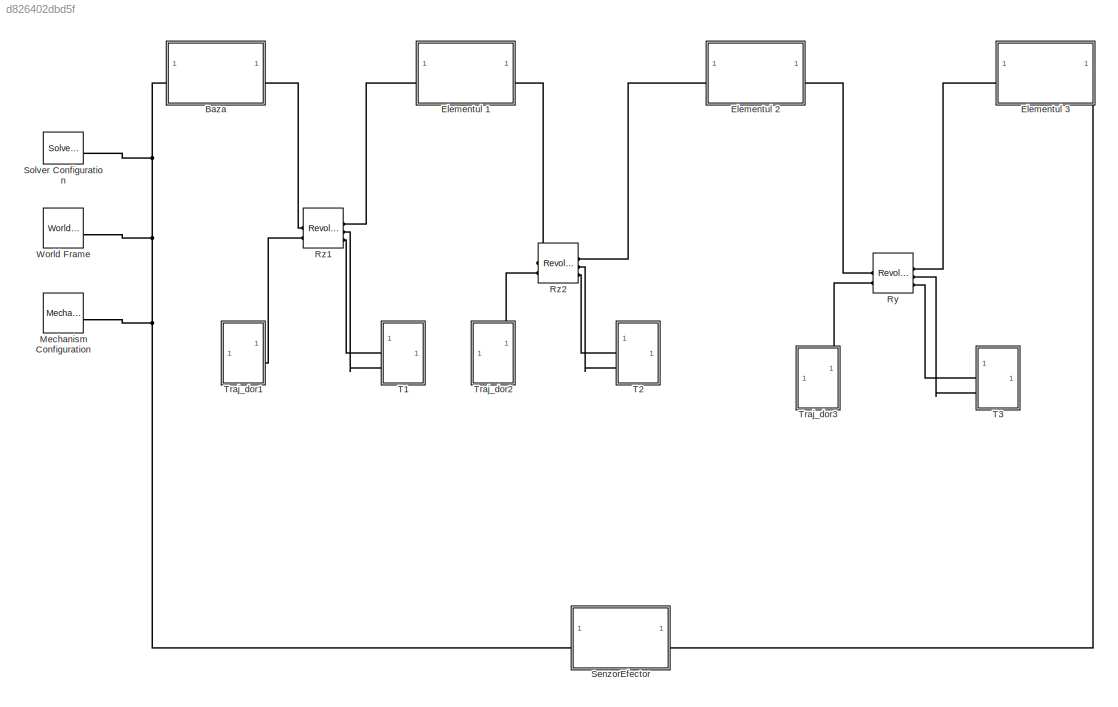
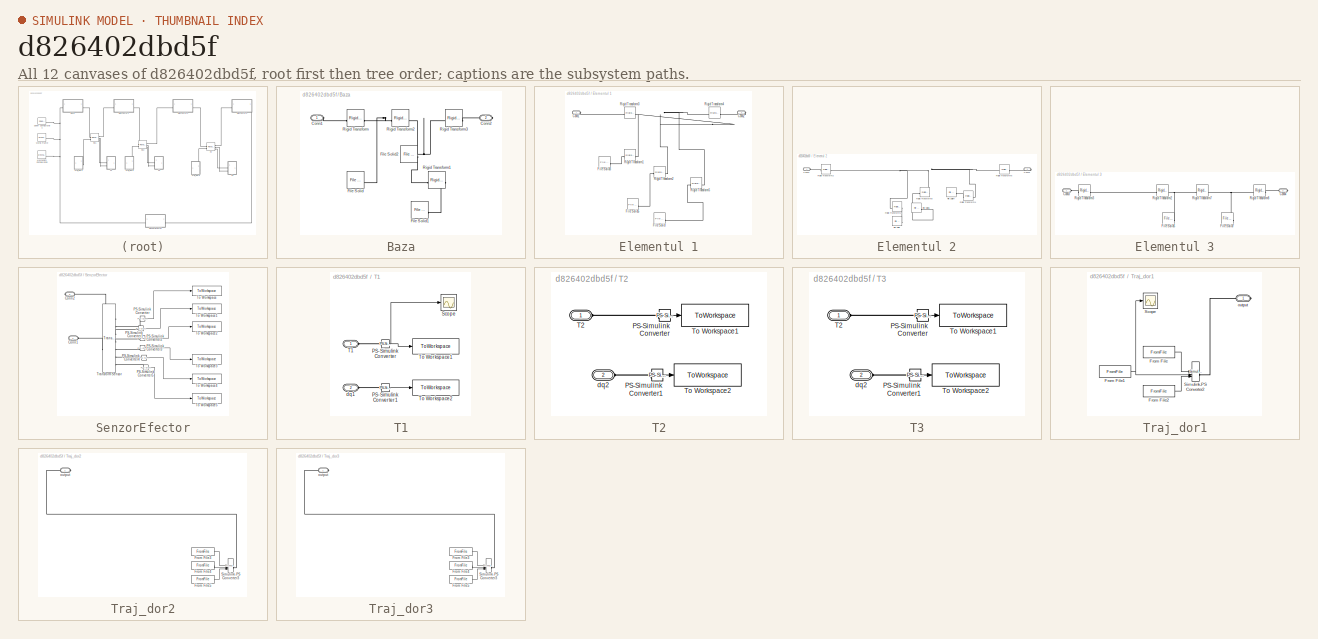
[diagram: thumbnail index - all 12 canvases of the model, root first then tree order]
MODEL slx_d826402dbd5f
KIND model
CONFIG AbsTol = 1e-3
CONFIG EnableMultiTasking = on
CONFIG FixedStep = auto
CONFIG MaxStep = auto
CONFIG MinStep = auto
CONFIG RelTol = 1e-3
CONFIG SampleTimeConstraint = Unconstrained
CONFIG SolverName = VariableStepAuto
CONFIG StartTime = 0.0
CONFIG StopTime = 5
BLOCK [SubSystem] Baza
BLOCK [PMIOPort] Baza/Conn1
  Side = Left
BLOCK [PMIOPort] Baza/Conn2
  Port = 2
  Side = Right
BLOCK [Reference] Baza/File Solid  REF=sm_lib/Body Elements/File Solid
  SourceBlock = sm_lib/Body Elements/File Solid
  SourceType = File Solid
BLOCK [Reference] Baza/File Solid1  REF=sm_lib/Body Elements/File Solid
  SourceBlock = sm_lib/Body Elements/File Solid
  SourceType = File Solid
BLOCK [Reference] Baza/File Solid2  REF=sm_lib/Body Elements/File Solid
  SourceBlock = sm_lib/Body Elements/File Solid
  SourceType = File Solid
BLOCK [Reference] Baza/Rigid Transform  REF=sm_lib/Frames and
Transforms/Rigid
Transform
  SourceBlock = sm_lib/Frames and\nTransforms/Rigid\nTransform
  SourceType = Rigid\nTransform
BLOCK [Reference] Baza/Rigid Transform1  REF=sm_lib/Frames and
Transforms/Rigid
Transform
  SourceBlock = sm_lib/Frames and\nTransforms/Rigid\nTransform
  SourceType = Rigid\nTransform
BLOCK [Reference] Baza/Rigid Transform2  REF=sm_lib/Frames and
Transforms/Rigid
Transform
  SourceBlock = sm_lib/Frames and\nTransforms/Rigid\nTransform
  SourceType = Rigid\nTransform
BLOCK [Reference] Baza/Rigid Transform3  REF=sm_lib/Frames and
Transforms/Rigid
Transform
  SourceBlock = sm_lib/Frames and\nTransforms/Rigid\nTransform
  SourceType = Rigid\nTransform
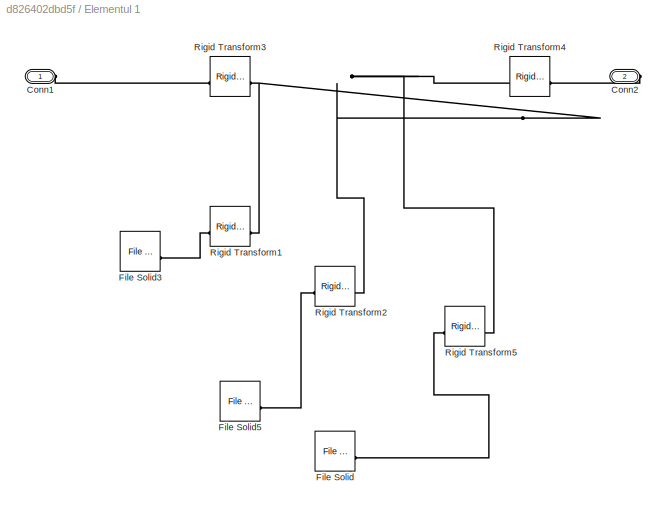
BLOCK [SubSystem] Elementul 1
BLOCK [PMIOPort] Elementul 1/Conn1
  Side = Left
BLOCK [PMIOPort] Elementul 1/Conn2
  Port = 2
  Side = Right
BLOCK [Reference] Elementul 1/File Solid  REF=sm_lib/Body Elements/File Solid
  SourceBlock = sm_lib/Body Elements/File Solid
  SourceType = File Solid
BLOCK [Reference] Elementul 1/File Solid3  REF=sm_lib/Body Elements/File Solid
  SourceBlock = sm_lib/Body Elements/File Solid
  SourceType = File Solid
BLOCK [Reference] Elementul 1/File Solid5  REF=sm_lib/Body Elements/File Solid
  SourceBlock = sm_lib/Body Elements/File Solid
  SourceType = File Solid
BLOCK [Reference] Elementul 1/Rigid Transform1  REF=sm_lib/Frames and
Transforms/Rigid
Transform
  SourceBlock = sm_lib/Frames and\nTransforms/Rigid\nTransform
  SourceType = Rigid\nTransform
BLOCK [Reference] Elementul 1/Rigid Transform2  REF=sm_lib/Frames and
Transforms/Rigid
Transform
  SourceBlock = sm_lib/Frames and\nTransforms/Rigid\nTransform
  SourceType = Rigid\nTransform
BLOCK [Reference] Elementul 1/Rigid Transform3  REF=sm_lib/Frames and
Transforms/Rigid
Transform
  SourceBlock = sm_lib/Frames and\nTransforms/Rigid\nTransform
  SourceType = Rigid\nTransform
BLOCK [Reference] Elementul 1/Rigid Transform4  REF=sm_lib/Frames and
Transforms/Rigid
Transform
  SourceBlock = sm_lib/Frames and\nTransforms/Rigid\nTransform
  SourceType = Rigid\nTransform
BLOCK [Reference] Elementul 1/Rigid Transform5  REF=sm_lib/Frames and
Transforms/Rigid
Transform
  SourceBlock = sm_lib/Frames and\nTransforms/Rigid\nTransform
  SourceType = Rigid\nTransform
BLOCK [SubSystem] Elementul 2
BLOCK [PMIOPort] Elementul 2/Conn1
  Side = Left
BLOCK [PMIOPort] Elementul 2/Conn4
  Port = 2
  Side = Right
BLOCK [Reference] Elementul 2/File Solid  REF=sm_lib/Body Elements/File Solid
  SourceBlock = sm_lib/Body Elements/File Solid
  SourceType = File Solid
BLOCK [Reference] Elementul 2/File Solid1  REF=sm_lib/Body Elements/File Solid
  SourceBlock = sm_lib/Body Elements/File Solid
  SourceType = File Solid
BLOCK [Reference] Elementul 2/File Solid4  REF=sm_lib/Body Elements/File Solid
  SourceBlock = sm_lib/Body Elements/File Solid
  SourceType = File Solid
BLOCK [Reference] Elementul 2/Rigid Transform1  REF=sm_lib/Frames and
Transforms/Rigid
Transform
  SourceBlock = sm_lib/Frames and\nTransforms/Rigid\nTransform
  SourceType = Rigid\nTransform
BLOCK [Reference] Elementul 2/Rigid Transform2  REF=sm_lib/Frames and
Transforms/Rigid
Transform
  SourceBlock = sm_lib/Frames and\nTransforms/Rigid\nTransform
  SourceType = Rigid\nTransform
BLOCK [Reference] Elementul 2/Rigid Transform4  REF=sm_lib/Frames and
Transforms/Rigid
Transform
  SourceBlock = sm_lib/Frames and\nTransforms/Rigid\nTransform
  SourceType = Rigid\nTransform
BLOCK [Reference] Elementul 2/Rigid Transform5  REF=sm_lib/Frames and
Transforms/Rigid
Transform
  SourceBlock = sm_lib/Frames and\nTransforms/Rigid\nTransform
  SourceType = Rigid\nTransform
BLOCK [Reference] Elementul 2/Rigid Transform8  REF=sm_lib/Frames and
Transforms/Rigid
Transform
  SourceBlock = sm_lib/Frames and\nTransforms/Rigid\nTransform
  SourceType = Rigid\nTransform
BLOCK [SubSystem] Elementul 3
BLOCK [PMIOPort] Elementul 3/Conn3
  Side = Left
BLOCK [PMIOPort] Elementul 3/Conn4
  Port = 2
  Side = Right
BLOCK [Reference] Elementul 3/File Solid5  REF=sm_lib/Body Elements/File Solid
  SourceBlock = sm_lib/Body Elements/File Solid
  SourceType = File Solid
BLOCK [Reference] Elementul 3/File Solid7  REF=sm_lib/Body Elements/File Solid
  SourceBlock = sm_lib/Body Elements/File Solid
  SourceType = File Solid
BLOCK [Reference] Elementul 3/Rigid Transform2  REF=sm_lib/Frames and
Transforms/Rigid
Transform
  SourceBlock = sm_lib/Frames and\nTransforms/Rigid\nTransform
  SourceType = Rigid\nTransform
BLOCK [Reference] Elementul 3/Rigid Transform3  REF=sm_lib/Frames and
Transforms/Rigid
Transform
  SourceBlock = sm_lib/Frames and\nTransforms/Rigid\nTransform
  SourceType = Rigid\nTransform
BLOCK [Reference] Elementul 3/Rigid Transform7  REF=sm_lib/Frames and
Transforms/Rigid
Transform
  SourceBlock = sm_lib/Frames and\nTransforms/Rigid\nTransform
  SourceType = Rigid\nTransform
BLOCK [Reference] Elementul 3/Rigid Transform8  REF=sm_lib/Frames and
Transforms/Rigid
Transform
  SourceBlock = sm_lib/Frames and\nTransforms/Rigid\nTransform
  SourceType = Rigid\nTransform
BLOCK [Reference] Mechanism Configuration  REF=sm_lib/Utilities/Mechanism
Configuration
  SourceBlock = sm_lib/Utilities/Mechanism\nConfiguration
  SourceType = Mechanism\nConfiguration
BLOCK [Reference] Ry  REF=sm_lib/Joints/Revolute Joint
  SourceBlock = sm_lib/Joints/Revolute Joint
  SourceType = Revolute Joint
BLOCK [Reference] Rz1  REF=sm_lib/Joints/Revolute Joint
  SourceBlock = sm_lib/Joints/Revolute Joint
  SourceType = Revolute Joint
BLOCK [Reference] Rz2  REF=sm_lib/Joints/Revolute Joint
  SourceBlock = sm_lib/Joints/Revolute Joint
  SourceType = Revolute Joint
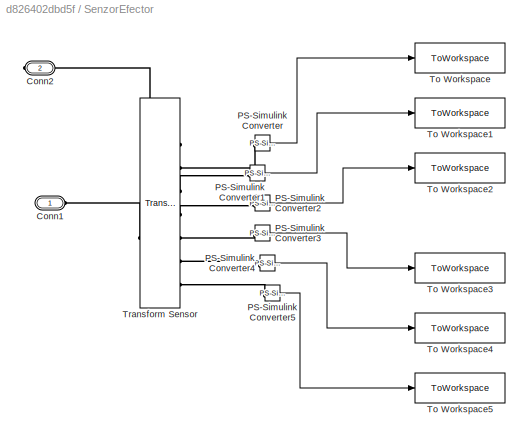
BLOCK [SubSystem] SenzorEfector
BLOCK [PMIOPort] SenzorEfector/Conn1
  Side = Left
BLOCK [PMIOPort] SenzorEfector/Conn2
  Port = 2
  Side = Right
BLOCK [Reference] SenzorEfector/PS-Simulink Converter  REF=nesl_utility/PS-Simulink
Converter
  SourceBlock = nesl_utility/PS-Simulink\nConverter
  SourceType = PS-Simulink\nConverter
BLOCK [Reference] SenzorEfector/PS-Simulink Converter1  REF=nesl_utility/PS-Simulink
Converter
  SourceBlock = nesl_utility/PS-Simulink\nConverter
  SourceType = PS-Simulink\nConverter
BLOCK [Reference] SenzorEfector/PS-Simulink Converter2  REF=nesl_utility/PS-Simulink
Converter
  SourceBlock = nesl_utility/PS-Simulink\nConverter
  SourceType = PS-Simulink\nConverter
BLOCK [Reference] SenzorEfector/PS-Simulink Converter3  REF=nesl_utility/PS-Simulink
Converter
  SourceBlock = nesl_utility/PS-Simulink\nConverter
  SourceType = PS-Simulink\nConverter
BLOCK [Reference] SenzorEfector/PS-Simulink Converter4  REF=nesl_utility/PS-Simulink
Converter
  SourceBlock = nesl_utility/PS-Simulink\nConverter
  SourceType = PS-Simulink\nConverter
BLOCK [Reference] SenzorEfector/PS-Simulink Converter5  REF=nesl_utility/PS-Simulink
Converter
  SourceBlock = nesl_utility/PS-Simulink\nConverter
  SourceType = PS-Simulink\nConverter
BLOCK [ToWorkspace] SenzorEfector/To Workspace
  FixptAsFi = on
  MaxDataPoints = inf
  SampleTime = -1
  SaveFormat = Timeseries
  VariableName = x_out
BLOCK [ToWorkspace] SenzorEfector/To Workspace1
  FixptAsFi = on
  MaxDataPoints = inf
  SampleTime = -1
  SaveFormat = Timeseries
  VariableName = y_out
BLOCK [ToWorkspace] SenzorEfector/To Workspace2
  FixptAsFi = on
  MaxDataPoints = inf
  SampleTime = -1
  SaveFormat = Timeseries
  VariableName = z_out
BLOCK [ToWorkspace] SenzorEfector/To Workspace3
  FixptAsFi = on
  MaxDataPoints = inf
  SampleTime = -1
  SaveFormat = Timeseries
  VariableName = dx_out
BLOCK [ToWorkspace] SenzorEfector/To Workspace4
  FixptAsFi = on
  MaxDataPoints = inf
  SampleTime = -1
  SaveFormat = Timeseries
  VariableName = dy_out
BLOCK [ToWorkspace] SenzorEfector/To Workspace5
  FixptAsFi = on
  MaxDataPoints = inf
  SampleTime = -1
  SaveFormat = Timeseries
  VariableName = dz_out
BLOCK [Reference] SenzorEfector/Transform Sensor  REF=sm_lib/Frames and
Transforms/Transform
Sensor
  SourceBlock = sm_lib/Frames and\nTransforms/Transform\nSensor
  SourceType = Transform\nSensor
BLOCK [Reference] Solver Configuration  REF=nesl_utility/Solver
Configuration
  SourceBlock = nesl_utility/Solver\nConfiguration
  SourceType = Solver\nConfiguration
BLOCK [SubSystem] T1
BLOCK [Reference] T1/PS-Simulink Converter  REF=nesl_utility/PS-Simulink
Converter
  SourceBlock = nesl_utility/PS-Simulink\nConverter
  SourceType = PS-Simulink\nConverter
BLOCK [Reference] T1/PS-Simulink Converter1  REF=nesl_utility/PS-Simulink
Converter
  SourceBlock = nesl_utility/PS-Simulink\nConverter
  SourceType = PS-Simulink\nConverter
BLOCK [Scope] T1/Scope
  Floating = off
  NumInputPorts = 1
  ScopeSpecificationString = Simulink.scopes.TimeScopeBlockCfg('CurrentConfiguration', extmgr.ConfigurationSet(extmgr.Configuration('Core','General UI',true),extmgr.Configuration('Core','Source UI',true),extmgr.Configuration('Sources','WiredSimulink',true,'DataLoggingSaveFormat','Array','DataLoggingLimitDataPoints',true,'DataLoggingDecimation','1'),extmgr.Configuration('Visuals','Time Domain',true,'SerializedDisplays',{struct...<+1612ch>
BLOCK [PMIOPort] T1/T1
  Side = Left
BLOCK [ToWorkspace] T1/To Workspace1
  FixptAsFi = on
  MaxDataPoints = inf
  SampleTime = -1
  SaveFormat = Timeseries
  VariableName = T1_out
BLOCK [ToWorkspace] T1/To Workspace2
  FixptAsFi = on
  MaxDataPoints = inf
  SampleTime = -1
  SaveFormat = Timeseries
  VariableName = dq1_out
BLOCK [PMIOPort] T1/dq1
  Port = 2
  Side = Left
BLOCK [SubSystem] T2
BLOCK [Reference] T2/PS-Simulink Converter  REF=nesl_utility/PS-Simulink
Converter
  SourceBlock = nesl_utility/PS-Simulink\nConverter
  SourceType = PS-Simulink\nConverter
BLOCK [Reference] T2/PS-Simulink Converter1  REF=nesl_utility/PS-Simulink
Converter
  SourceBlock = nesl_utility/PS-Simulink\nConverter
  SourceType = PS-Simulink\nConverter
BLOCK [PMIOPort] T2/T2
  Side = Left
BLOCK [ToWorkspace] T2/To Workspace1
  FixptAsFi = on
  MaxDataPoints = inf
  SampleTime = -1
  SaveFormat = Timeseries
  VariableName = T2_out
BLOCK [ToWorkspace] T2/To Workspace2
  FixptAsFi = on
  MaxDataPoints = inf
  SampleTime = -1
  SaveFormat = Timeseries
  VariableName = dq2_out
BLOCK [PMIOPort] T2/dq2
  Port = 2
  Side = Left
BLOCK [SubSystem] T3
BLOCK [Reference] T3/PS-Simulink Converter  REF=nesl_utility/PS-Simulink
Converter
  SourceBlock = nesl_utility/PS-Simulink\nConverter
  SourceType = PS-Simulink\nConverter
BLOCK [Reference] T3/PS-Simulink Converter1  REF=nesl_utility/PS-Simulink
Converter
  SourceBlock = nesl_utility/PS-Simulink\nConverter
  SourceType = PS-Simulink\nConverter
BLOCK [PMIOPort] T3/T2
  Side = Left
BLOCK [ToWorkspace] T3/To Workspace1
  FixptAsFi = on
  MaxDataPoints = inf
  SampleTime = -1
  SaveFormat = Timeseries
  VariableName = T3_out
BLOCK [ToWorkspace] T3/To Workspace2
  FixptAsFi = on
  MaxDataPoints = inf
  SampleTime = -1
  SaveFormat = Timeseries
  VariableName = dq3_out
BLOCK [PMIOPort] T3/dq2
  Port = 2
  Side = Left
BLOCK [SubSystem] Traj_dor1
BLOCK [FromFile] Traj_dor1/From File
  FileName = Poz_1.mat
  SampleTime = 0
BLOCK [FromFile] Traj_dor1/From File1
  FileName = Vit_1.mat
  SampleTime = 0
BLOCK [FromFile] Traj_dor1/From File2
  FileName = Acc_1.mat
  SampleTime = 0
BLOCK [Scope] Traj_dor1/Scope
  Floating = off
  NumInputPorts = 1
  ScopeSpecificationString = Simulink.scopes.TimeScopeBlockCfg('CurrentConfiguration', extmgr.ConfigurationSet(extmgr.Configuration('Core','General UI',true),extmgr.Configuration('Core','Source UI',true),extmgr.Configuration('Sources','WiredSimulink',true,'DataLoggingVariableName','ScopeData1'),extmgr.Configuration('Visuals','Time Domain',true,'SerializedDisplays',{struct('MinYLimReal','-0.23562','MaxYLimReal','2.12057','YLab...<+1369ch>
BLOCK [Reference] Traj_dor1/Simulink-PS Converter2  REF=nesl_utility/Simulink-PS
Converter
  SourceBlock = nesl_utility/Simulink-PS\nConverter
  SourceType = Simulink-PS\nConverter
BLOCK [PMIOPort] Traj_dor1/output
  Side = Right
BLOCK [SubSystem] Traj_dor2
BLOCK [FromFile] Traj_dor2/From File3
  FileName = Poz_2.mat
  SampleTime = 0
BLOCK [FromFile] Traj_dor2/From File4
  FileName = Vit_2.mat
  SampleTime = 0
BLOCK [FromFile] Traj_dor2/From File5
  FileName = Acc_2.mat
  SampleTime = 0
BLOCK [Reference] Traj_dor2/Simulink-PS Converter3  REF=nesl_utility/Simulink-PS
Converter
  SourceBlock = nesl_utility/Simulink-PS\nConverter
  SourceType = Simulink-PS\nConverter
BLOCK [PMIOPort] Traj_dor2/output
  Side = Right
BLOCK [SubSystem] Traj_dor3
BLOCK [FromFile] Traj_dor3/From File3
  FileName = Poz_3.mat
  SampleTime = 0
BLOCK [FromFile] Traj_dor3/From File4
  FileName = Vit_3.mat
  SampleTime = 0
BLOCK [FromFile] Traj_dor3/From File5
  FileName = Acc_3.mat
  SampleTime = 0
BLOCK [Reference] Traj_dor3/Simulink-PS Converter3  REF=nesl_utility/Simulink-PS
Converter
  SourceBlock = nesl_utility/Simulink-PS\nConverter
  SourceType = Simulink-PS\nConverter
BLOCK [PMIOPort] Traj_dor3/output
  Side = Right
BLOCK [Reference] World Frame  REF=sm_lib/Frames and
Transforms/World Frame
  SourceBlock = sm_lib/Frames and\nTransforms/World Frame
  SourceType = World Frame
LINE SenzorEfector/PS-Simulink Converter1:1 -> SenzorEfector/To Workspace1:1
LINE SenzorEfector/PS-Simulink Converter2:1 -> SenzorEfector/To Workspace2:1
LINE SenzorEfector/PS-Simulink Converter3:1 -> SenzorEfector/To Workspace3:1
LINE SenzorEfector/PS-Simulink Converter4:1 -> SenzorEfector/To Workspace4:1
LINE SenzorEfector/PS-Simulink Converter5:1 -> SenzorEfector/To Workspace5:1
LINE SenzorEfector/PS-Simulink Converter:1 -> SenzorEfector/To Workspace:1
LINE T1/PS-Simulink Converter1:1 -> T1/To Workspace2:1
NET T1/PS-Simulink Converter:1 -> T1/Scope:1, T1/To Workspace1:1
LINE T2/PS-Simulink Converter1:1 -> T2/To Workspace2:1
LINE T2/PS-Simulink Converter:1 -> T2/To Workspace1:1
LINE T3/PS-Simulink Converter1:1 -> T3/To Workspace2:1
LINE T3/PS-Simulink Converter:1 -> T3/To Workspace1:1
NET Traj_dor1/From File1:1 -> Traj_dor1/Scope:1, Traj_dor1/Simulink-PS Converter2:2
LINE Traj_dor1/From File2:1 -> Traj_dor1/Simulink-PS Converter2:3
LINE Traj_dor1/From File:1 -> Traj_dor1/Simulink-PS Converter2:1
LINE Traj_dor2/From File3:1 -> Traj_dor2/Simulink-PS Converter3:1
LINE Traj_dor2/From File4:1 -> Traj_dor2/Simulink-PS Converter3:2
LINE Traj_dor2/From File5:1 -> Traj_dor2/Simulink-PS Converter3:3
LINE Traj_dor3/From File3:1 -> Traj_dor3/Simulink-PS Converter3:1
LINE Traj_dor3/From File4:1 -> Traj_dor3/Simulink-PS Converter3:2
LINE Traj_dor3/From File5:1 -> Traj_dor3/Simulink-PS Converter3:3
PLINE Baza/Conn1:RConn1 -- Baza/Rigid Transform:LConn1
PLINE Baza/Conn2:RConn1 -- Baza/Rigid Transform3:RConn1
PLINE Baza/File Solid1:RConn1 -- Baza/Rigid Transform1:RConn1
PNET net1: Baza/File Solid2:RConn1 -- Baza/Rigid Transform1:LConn1 -- Baza/Rigid Transform2:RConn1 -- Baza/Rigid Transform3:LConn1
PNET net2: Baza/File Solid:RConn1 -- Baza/Rigid Transform2:LConn1 -- Baza/Rigid Transform:RConn1
PNET net3: Baza:LConn1 -- Mechanism Configuration:RConn1 -- SenzorEfector:LConn1 -- Solver Configuration:RConn1 -- World Frame:RConn1
PLINE Baza:RConn1 -- Rz1:LConn1
PLINE Elementul 1/Conn1:RConn1 -- Elementul 1/Rigid Transform3:LConn1
PLINE Elementul 1/Conn2:RConn1 -- Elementul 1/Rigid Transform4:RConn1
PLINE Elementul 1/File Solid3:RConn1 -- Elementul 1/Rigid Transform1:LConn1
PLINE Elementul 1/File Solid5:RConn1 -- Elementul 1/Rigid Transform2:LConn1
PLINE Elementul 1/File Solid:RConn1 -- Elementul 1/Rigid Transform5:LConn1
PNET net4: Elementul 1/Rigid Transform1:RConn1 -- Elementul 1/Rigid Transform2:RConn1 -- Elementul 1/Rigid Transform3:RConn1 -- Elementul 1/Rigid Transform4:LConn1 -- Elementul 1/Rigid Transform5:RConn1
PLINE Elementul 1:LConn1 -- Rz1:RConn1
PLINE Elementul 1:RConn1 -- Rz2:LConn1
PLINE Elementul 2/Conn1:RConn1 -- Elementul 2/Rigid Transform2:LConn1
PLINE Elementul 2/Conn4:RConn1 -- Elementul 2/Rigid Transform5:RConn1
PLINE Elementul 2/File Solid1:RConn1 -- Elementul 2/Rigid Transform8:LConn1
PLINE Elementul 2/File Solid4:RConn1 -- Elementul 2/Rigid Transform4:LConn1
PLINE Elementul 2/File Solid:RConn1 -- Elementul 2/Rigid Transform1:RConn1
PNET net5: Elementul 2/Rigid Transform1:LConn1 -- Elementul 2/Rigid Transform2:RConn1 -- Elementul 2/Rigid Transform4:RConn1 -- Elementul 2/Rigid Transform5:LConn1 -- Elementul 2/Rigid Transform8:RConn1
PLINE Elementul 2:LConn1 -- Rz2:RConn1
PLINE Elementul 2:RConn1 -- Ry:LConn1
PLINE Elementul 3/Conn3:RConn1 -- Elementul 3/Rigid Transform3:LConn1
PLINE Elementul 3/Conn4:RConn1 -- Elementul 3/Rigid Transform8:RConn1
PNET net6: Elementul 3/File Solid5:RConn1 -- Elementul 3/Rigid Transform2:RConn1 -- Elementul 3/Rigid Transform7:LConn1
PNET net7: Elementul 3/File Solid7:RConn1 -- Elementul 3/Rigid Transform7:RConn1 -- Elementul 3/Rigid Transform8:LConn1
PLINE Elementul 3/Rigid Transform2:LConn1 -- Elementul 3/Rigid Transform3:RConn1
PLINE Elementul 3:LConn1 -- Ry:RConn1
PLINE Elementul 3:RConn1 -- SenzorEfector:RConn1
PLINE Ry:LConn2 -- Traj_dor3:RConn1
PLINE Ry:RConn2 -- T3:LConn2
PLINE Ry:RConn3 -- T3:LConn1
PLINE Rz1:LConn2 -- Traj_dor1:RConn1
PLINE Rz1:RConn2 -- T1:LConn2
PLINE Rz1:RConn3 -- T1:LConn1
PLINE Rz2:LConn2 -- Traj_dor2:RConn1
PLINE Rz2:RConn2 -- T2:LConn2
PLINE Rz2:RConn3 -- T2:LConn1
PLINE SenzorEfector/Conn1:RConn1 -- SenzorEfector/Transform Sensor:LConn1
PLINE SenzorEfector/Conn2:RConn1 -- SenzorEfector/Transform Sensor:RConn1
PLINE SenzorEfector/PS-Simulink Converter1:LConn1 -- SenzorEfector/Transform Sensor:RConn3
PLINE SenzorEfector/PS-Simulink Converter2:LConn1 -- SenzorEfector/Transform Sensor:RConn4
PLINE SenzorEfector/PS-Simulink Converter3:LConn1 -- SenzorEfector/Transform Sensor:RConn5
PLINE SenzorEfector/PS-Simulink Converter4:LConn1 -- SenzorEfector/Transform Sensor:RConn6
PLINE SenzorEfector/PS-Simulink Converter5:LConn1 -- SenzorEfector/Transform Sensor:RConn7
PLINE SenzorEfector/PS-Simulink Converter:LConn1 -- SenzorEfector/Transform Sensor:RConn2
PLINE T1/PS-Simulink Converter1:LConn1 -- T1/dq1:RConn1
PLINE T1/PS-Simulink Converter:LConn1 -- T1/T1:RConn1
PLINE T2/PS-Simulink Converter1:LConn1 -- T2/dq2:RConn1
PLINE T2/PS-Simulink Converter:LConn1 -- T2/T2:RConn1
PLINE T3/PS-Simulink Converter1:LConn1 -- T3/dq2:RConn1
PLINE T3/PS-Simulink Converter:LConn1 -- T3/T2:RConn1
PLINE Traj_dor1/Simulink-PS Converter2:RConn1 -- Traj_dor1/output:RConn1
PLINE Traj_dor2/Simulink-PS Converter3:RConn1 -- Traj_dor2/output:RConn1
PLINE Traj_dor3/Simulink-PS Converter3:RConn1 -- Traj_dor3/output:RConn1
note: NET lines group one-source signal fan-out (src -> all destinations, sorted); 1:1 wires keep LINE; PNET lines group multi-terminal physical nets as a canonical sorted terminal list (undirected conserving connections); 2-terminal nets keep the pairwise PLINE form
